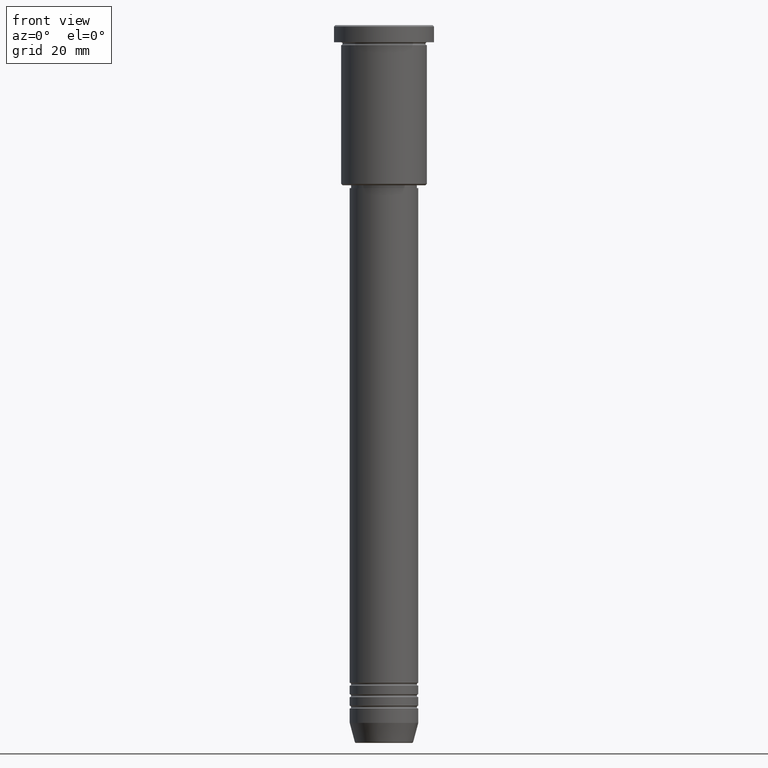
[diagram: clean part render]
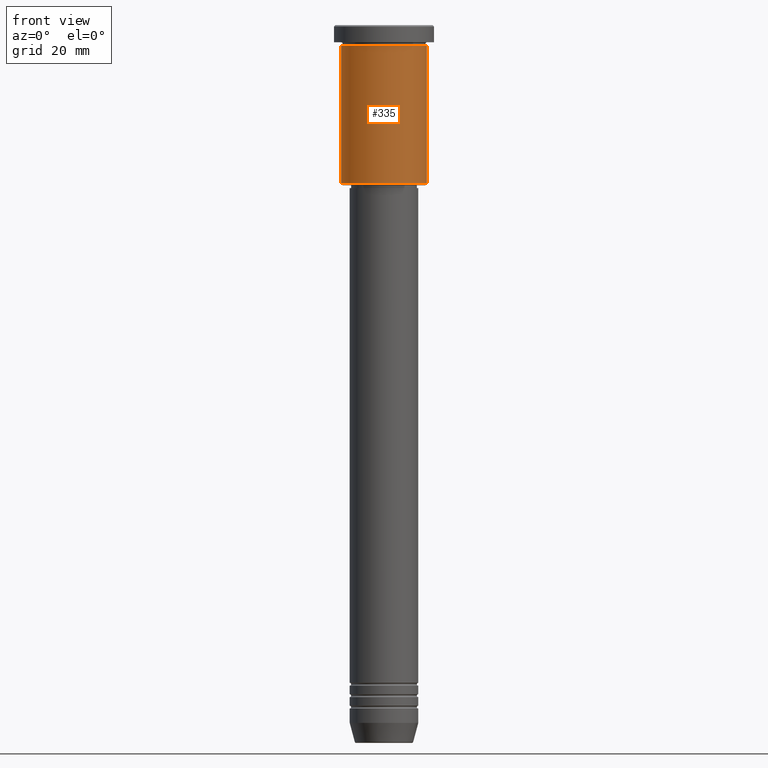
[diagram: same view with one face highlighted and labeled with its STEP entity id]
A machine part, front view. The second image highlights one B-rep face of the part: STEP entity #335.
In plain terms, the highlighted cylindrical surface (partial cylindrical patch) has radius 15 mm, axis along (-0, -0, 1).
Its self-contained STEP definition (entity closure, byte-faithful):
#3 = CARTESIAN_POINT ( 'NONE',  ( 0.000000000000000000, 0.000000000000000000, -6.999999999999995559 ) ) ;
#20 = CARTESIAN_POINT ( 'NONE',  ( -15.00000000000000000, 1.836970198721029589E-15, -6.999999999999995559 ) ) ;
#88 = VERTEX_POINT ( 'NONE', #1173 ) ;
#93 = EDGE_CURVE ( 'NONE', #720, #88, #1105, .T. ) ;
#100 = CARTESIAN_POINT ( 'NONE',  ( 0.000000000000000000, 0.000000000000000000, 0.000000000000000000 ) ) ;
#115 = EDGE_LOOP ( 'NONE', ( #163, #944, #877, #708 ) ) ;
#151 = VECTOR ( 'NONE', #590, 1000.000000000000000 ) ;
#163 = ORIENTED_EDGE ( 'NONE', *, *, #500, .F. ) ;
#203 = EDGE_CURVE ( 'NONE', #580, #1021, #1084, .T. ) ;
#335 = ADVANCED_FACE ( 'NONE', ( #553 ), #917, .T. ) ;
#398 = AXIS2_PLACEMENT_3D ( 'NONE', #622, #990, #536 ) ;
#440 = CARTESIAN_POINT ( 'NONE',  ( 15.00000000000000000, 0.000000000000000000, -55.50000000000000711 ) ) ;
#488 = CARTESIAN_POINT ( 'NONE',  ( 15.00000000000000000, 0.000000000000000000, 0.000000000000000000 ) ) ;
#500 = EDGE_CURVE ( 'NONE', #580, #720, #951, .T. ) ;
#502 = DIRECTION ( 'NONE',  ( -0.000000000000000000, -0.000000000000000000, 1.000000000000000000 ) ) ;
#536 = DIRECTION ( 'NONE',  ( -1.000000000000000000, 0.000000000000000000, 0.000000000000000000 ) ) ;
#546 = DIRECTION ( 'NONE',  ( 1.000000000000000000, 0.000000000000000000, 0.000000000000000000 ) ) ;
#553 = FACE_OUTER_BOUND ( 'NONE', #115, .T. ) ;
#556 = DIRECTION ( 'NONE',  ( 1.000000000000000000, 0.000000000000000000, 0.000000000000000000 ) ) ;
#580 = VERTEX_POINT ( 'NONE', #1177 ) ;
#590 = DIRECTION ( 'NONE',  ( -0.000000000000000000, -0.000000000000000000, 1.000000000000000000 ) ) ;
#597 = CARTESIAN_POINT ( 'NONE',  ( -15.00000000000000000, 1.836970198721029589E-15, 0.000000000000000000 ) ) ;
#618 = DIRECTION ( 'NONE',  ( -0.000000000000000000, -0.000000000000000000, 1.000000000000000000 ) ) ;
#622 = CARTESIAN_POINT ( 'NONE',  ( 0.000000000000000000, 0.000000000000000000, -55.50000000000000711 ) ) ;
#660 = AXIS2_PLACEMENT_3D ( 'NONE', #3, #618, #546 ) ;
#708 = ORIENTED_EDGE ( 'NONE', *, *, #93, .F. ) ;
#720 = VERTEX_POINT ( 'NONE', #20 ) ;
#853 = EDGE_CURVE ( 'NONE', #1021, #88, #868, .T. ) ;
#868 = LINE ( 'NONE', #488, #1124 ) ;
#875 = AXIS2_PLACEMENT_3D ( 'NONE', #100, #1018, #556 ) ;
#877 = ORIENTED_EDGE ( 'NONE', *, *, #853, .T. ) ;
#917 = CYLINDRICAL_SURFACE ( 'NONE', #875, 15.00000000000000000 ) ;
#944 = ORIENTED_EDGE ( 'NONE', *, *, #203, .T. ) ;
#951 = LINE ( 'NONE', #597, #151 ) ;
#990 = DIRECTION ( 'NONE',  ( -0.000000000000000000, -0.000000000000000000, 1.000000000000000000 ) ) ;
#1018 = DIRECTION ( 'NONE',  ( -0.000000000000000000, -0.000000000000000000, 1.000000000000000000 ) ) ;
#1021 = VERTEX_POINT ( 'NONE', #440 ) ;
#1084 = CIRCLE ( 'NONE', #398, 15.00000000000000000 ) ;
#1105 = CIRCLE ( 'NONE', #660, 15.00000000000000000 ) ;
#1124 = VECTOR ( 'NONE', #502, 1000.000000000000000 ) ;
#1173 = CARTESIAN_POINT ( 'NONE',  ( 15.00000000000000000, 0.000000000000000000, -6.999999999999995559 ) ) ;
#1177 = CARTESIAN_POINT ( 'NONE',  ( -15.00000000000000000, 1.836970198721029589E-15, -55.50000000000000711 ) ) ;